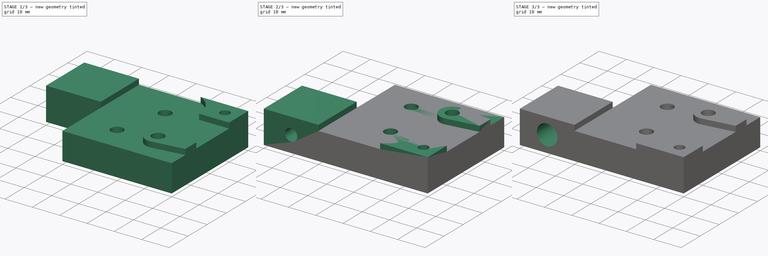
[diagram: build sequence overview — one tinted view per stage of 3, left to right]
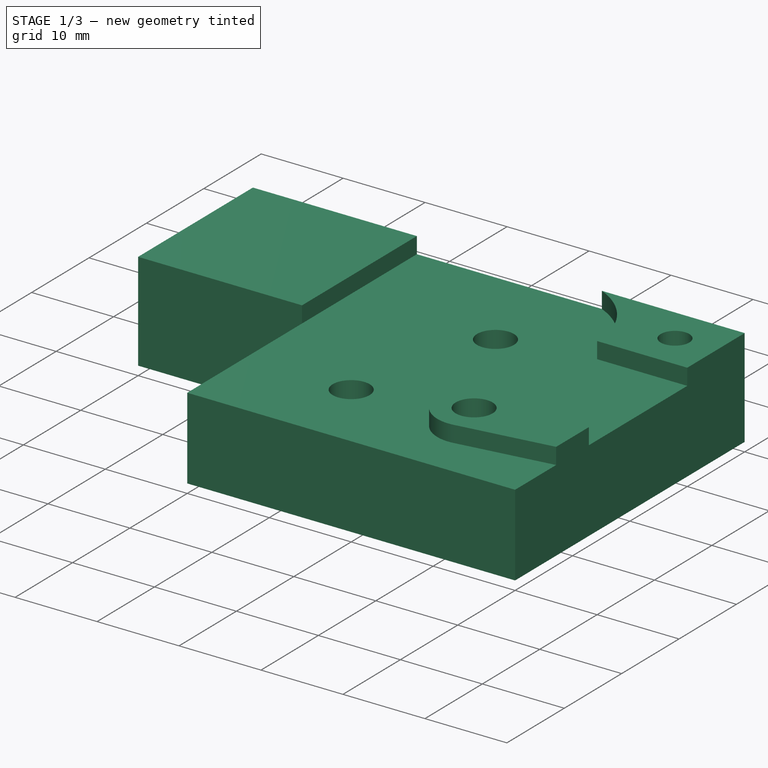
[diagram: stage 1 of 3 — iso view after this stage's code; geometry added in this stage tinted green]
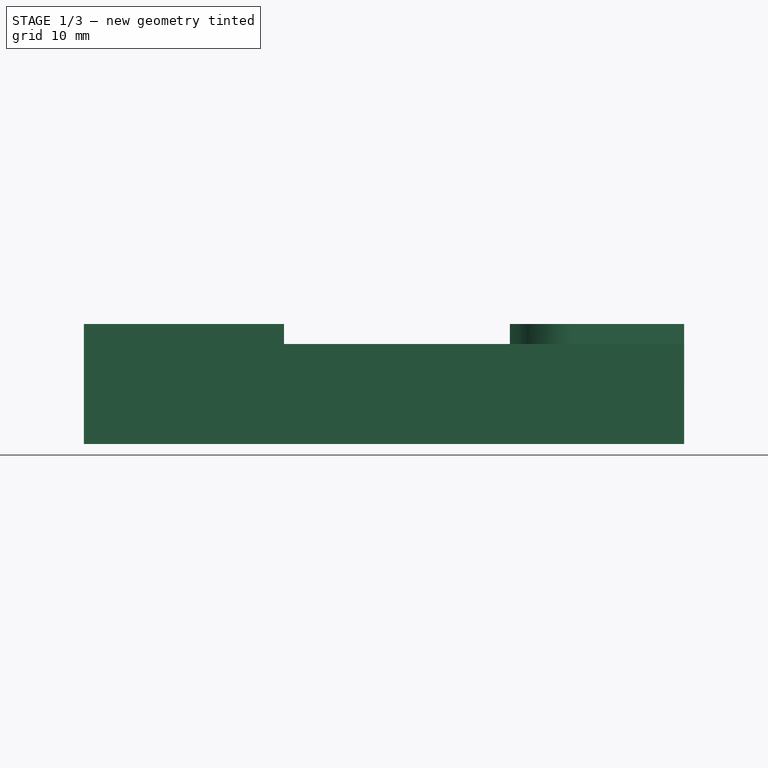
[diagram: stage 1 of 3 — front view after this stage's code; geometry added in this stage tinted green]
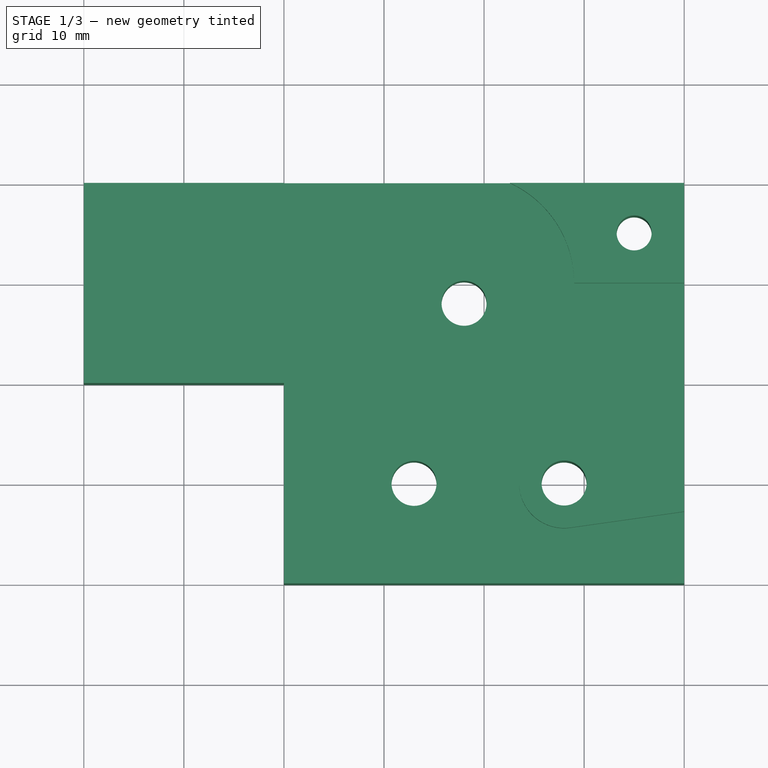
[diagram: stage 1 of 3 — top view after this stage's code; geometry added in this stage tinted green]
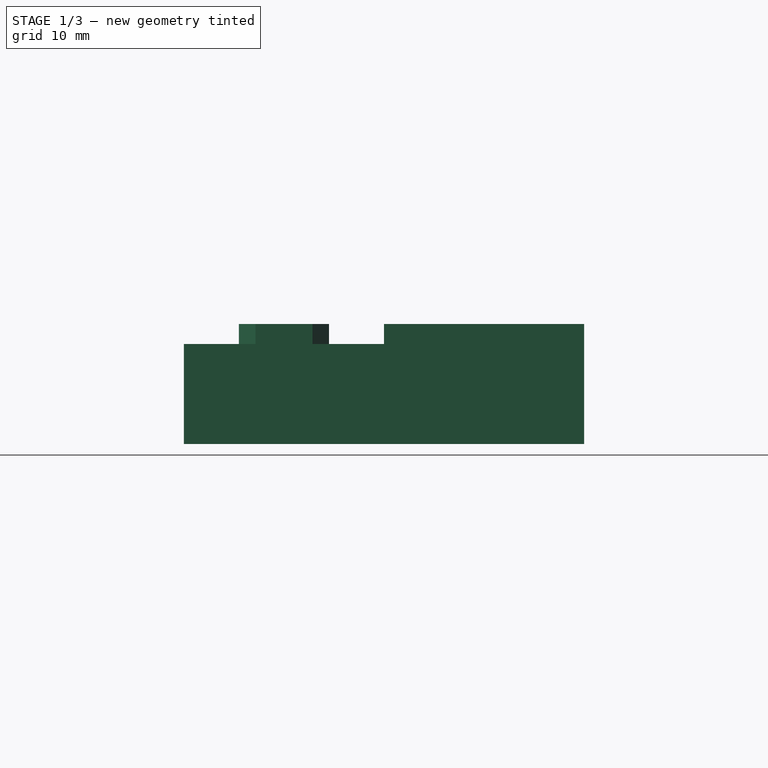
[diagram: stage 1 of 3 — right view after this stage's code; geometry added in this stage tinted green]
FCSTD DOCUMENT  (FreeCAD 0.16R4945 (Git))
Label: idler-block-top
License: All rights reserved
LicenseURL: http://en.wikipedia.org/wiki/All_rights_reserved
objects: Sketcher::SketchObject×5, PartDesign::Pocket×4, PartDesign::Pad×1, Part::Mirroring×1
note: 16 computed .brp shape members not serialized (recipe doc carries the construction recipe); baked Part::Feature solids carry a one-line shape summary decoded from their .brp

FEATURE [Sketcher::SketchObject] Sketch
  sketch-geometry (10):
    g0: LineSegment StartX=0 StartY=-20 StartZ=0 EndX=40 EndY=-20 EndZ=0
    g1: LineSegment StartX=40 StartY=-20 StartZ=0 EndX=40 EndY=20 EndZ=0
    g2: LineSegment StartX=40 StartY=20 StartZ=0 EndX=-20 EndY=20 EndZ=0
    g3: LineSegment StartX=-20 StartY=20 StartZ=0 EndX=-20 EndY=0 EndZ=0
    g4: LineSegment StartX=-20 StartY=0 StartZ=0 EndX=0 EndY=0 EndZ=0
    g5: LineSegment StartX=0 StartY=0 StartZ=0 EndX=0 EndY=-20 EndZ=0
    g6: Circle CenterX=18 CenterY=8 CenterZ=0 NormalX=0 NormalY=0 NormalZ=1 Radius=2.25
    g7: Circle CenterX=13 CenterY=-10 CenterZ=0 NormalX=0 NormalY=0 NormalZ=1 Radius=2.25
    g8: Circle CenterX=35 CenterY=15 CenterZ=0 NormalX=0 NormalY=0 NormalZ=1 Radius=1.75
    g9: Circle CenterX=28 CenterY=-10 CenterZ=0 NormalX=0 NormalY=0 NormalZ=1 Radius=2.25
  constraints (29):
    c: Coincident(g0,g1)
    c: Coincident(g1,g2)
    c: Coincident(g2,g3)
    c: Horizontal(g0)
    c: Horizontal(g2)
    c: Vertical(g1)
    c: Vertical(g3)
    c: Distance(g1) = 40
    c: Distance(g2) = 60
    c: Horizontal(g4)
    c: Coincident(g4,g5)
    c: Vertical(g5)
    c: Coincident(g3,g4)
    c: Coincident(g0,g5)
    c: DistanceX(g4) = 20
    c: DistanceY(g5) = -20
    c: DistanceY(g6,g7) = -18
    c: Equal(g6,g7)
    c: Radius(g7) = 2.25
    c: Coincident(g4,g-1)
    c: DistanceX(g8,g1) = 5
    c: DistanceX(g6) = 18
    c: DistanceX(g7,g6) = 5
    c: DistanceY(g1,g8) = -5
    c: DistanceY(g9,g7) = 0
    c: DistanceX(g-1,g9) = 28
    c: DistanceY(g7,g0) = -10
    c: Equal(g9,g7)
    c: Radius(g8) = 1.75
FEATURE [PartDesign::Pad] Pad
  Length = 12
  Length2 = 100
  Sketch = -> Sketch
  Type = 0
FEATURE [Sketcher::SketchObject] Sketch001
  Placement = pos=(0,0,12) rot=(0,0,1;0rad)
  Support = -> Pad [Face12]
  sketch-geometry (10):
    g0: LineSegment StartX=46 StartY=10 StartZ=0 EndX=29 EndY=10 EndZ=0
    g1: LineSegment StartX=18 StartY=21 StartZ=0 EndX=0 EndY=21 EndZ=0
    g2: ArcOfCircle CenterX=18 CenterY=10 CenterZ=0 NormalX=0 NormalY=0 NormalZ=1 Radius=11 StartAngle=0 EndAngle=1.5708
    g3: LineSegment StartX=46 StartY=-23 StartZ=0 EndX=46 EndY=-12 EndZ=0
    g4: ArcOfCircle CenterX=28 CenterY=-10 CenterZ=0 NormalX=0 NormalY=0 NormalZ=1 Radius=4.5 StartAngle=1.43036 EndAngle=4.85283
    g5: LineSegment StartX=28.6299 StartY=-5.5443 StartZ=0 EndX=46 EndY=-8 EndZ=0
    g6: LineSegment StartX=28.6299 StartY=-14.4557 StartZ=0 EndX=46 EndY=-12 EndZ=0
    g7: LineSegment StartX=46 StartY=-8 StartZ=0 EndX=46 EndY=10 EndZ=0
    g8: LineSegment StartX=0 StartY=-23 StartZ=0 EndX=46 EndY=-23 EndZ=0
    g9: LineSegment StartX=0 StartY=21 StartZ=0 EndX=0 EndY=-23 EndZ=0
  constraints (31):
    c: Horizontal(g0)
    c: Horizontal(g1)
    c: Coincident(g2,g0)
    c: Radius(g2) = 11
    c: Perpendicular(g0,g2)
    c: Coincident(g1,g2)
    c: Tangent(g1,g2)
    c: Vertical(g3)
    c: Coincident(g0,g7)
    c: DistanceX(g2) = 18
    c: DistanceY(g2) = 10
    c: Coincident(g5,g4)
    c: Coincident(g6,g4)
    c: Coincident(g3,g6)
    c: Coincident(g7,g5)
    c: Tangent(g3,g7)
    c: Tangent(g4,g5)
    c: Tangent(g4,g6)
    c: DistanceX(g4) = 28
    c: DistanceY(g5,g3) = -4
    c: Horizontal(g8)
    c: Coincident(g3,g8)
    c: DistanceY(g3) = 11
    c: Vertical(g9)
    c: Coincident(g8,g9)
    c: Distance(g8) = 46
    c: Coincident(g1,g9)
    c: DistanceX(g-1,g8) = 0
    c: DistanceY(g-1,g4) = -10
    c: Radius(g4) = 4.5
    c: DistanceY(g4,g5) = 2
FEATURE [PartDesign::Pocket] Pocket
  Length = 2
  Sketch = -> Sketch001
  Type = 0
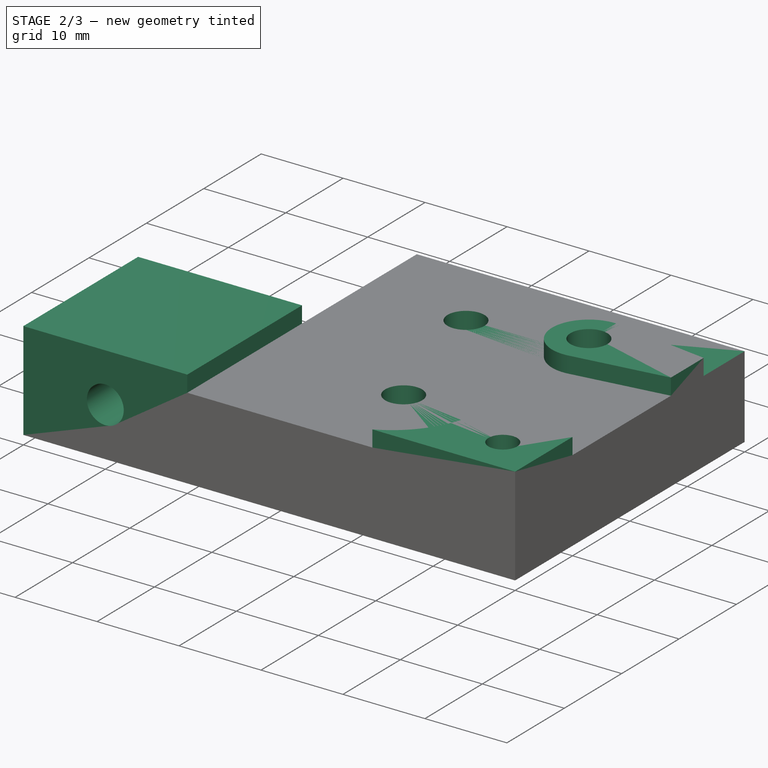
[diagram: stage 2 of 3 — iso view after this stage's code; geometry added in this stage tinted green]
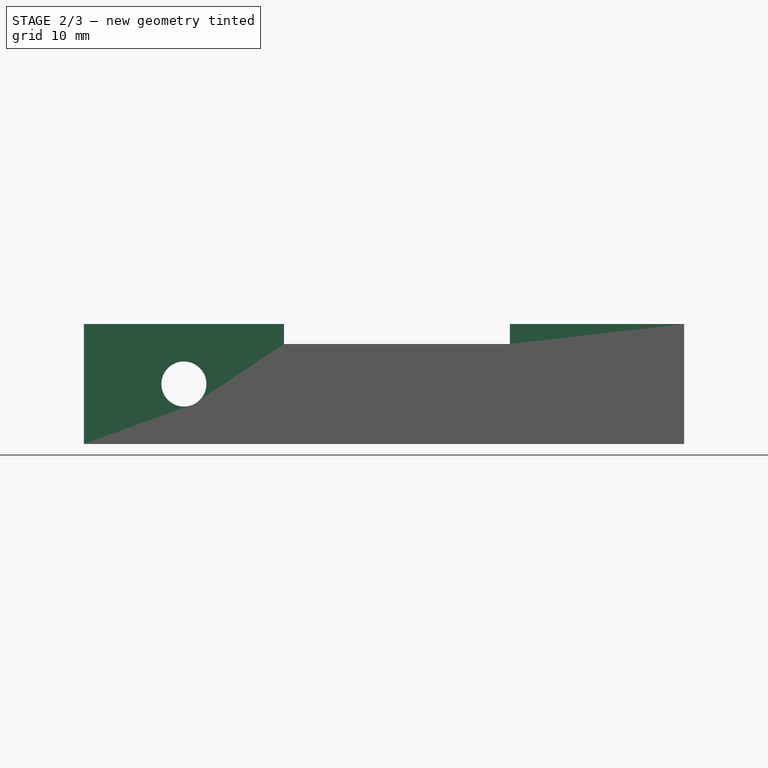
[diagram: stage 2 of 3 — front view after this stage's code; geometry added in this stage tinted green]
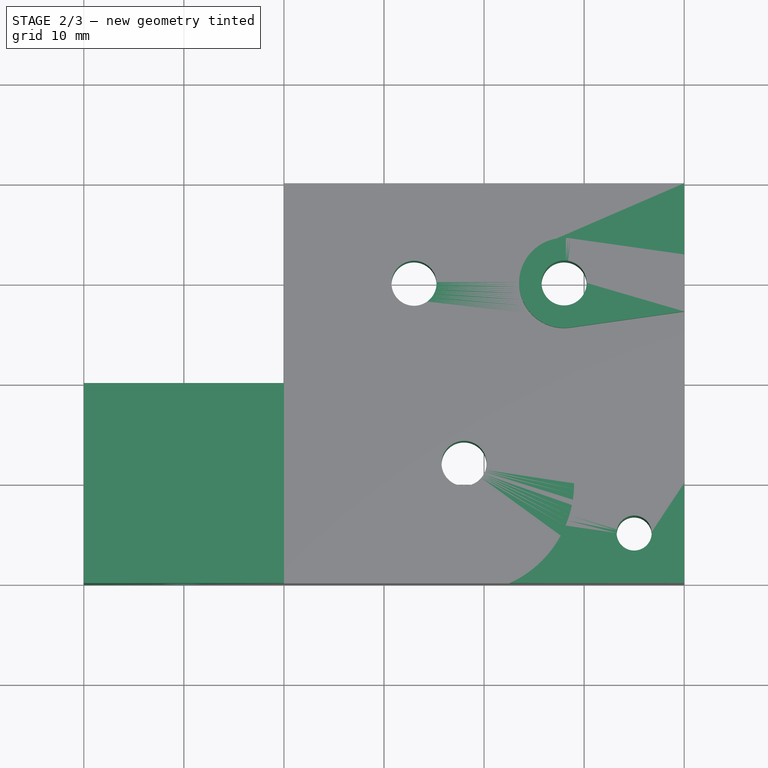
[diagram: stage 2 of 3 — top view after this stage's code; geometry added in this stage tinted green]
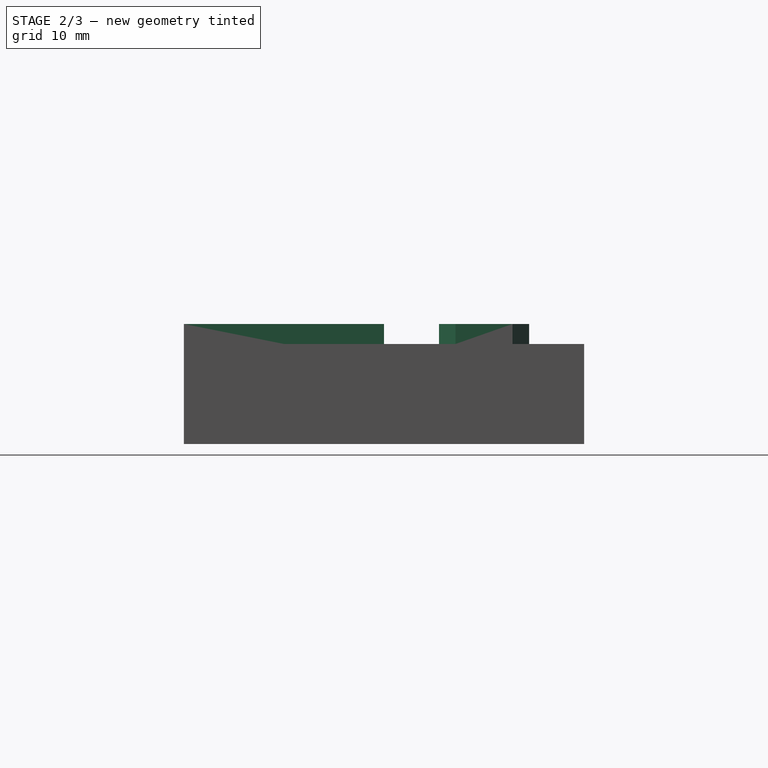
[diagram: stage 2 of 3 — right view after this stage's code; geometry added in this stage tinted green]
FEATURE [Sketcher::SketchObject] Sketch002
  Placement = pos=(0,0,0) rot=(1,0,0;1.5708rad)
  Support = -> Pocket [Face8]
  sketch-geometry (1):
    g0: Circle CenterX=-10 CenterY=6 CenterZ=0 NormalX=0 NormalY=0 NormalZ=1 Radius=2.25
  constraints (3):
    c: Radius(g0) = 2.25
    c: DistanceX(g0) = -10
    c: DistanceY(g0) = 6
FEATURE [PartDesign::Pocket] Pocket002
  Length = 5
  Sketch = -> Sketch002
  Type = 1
FEATURE [Part::Mirroring] Part__Mirroring  label="idler-block-top"
  Base = (10,-0.411961,0)
  Normal = (0,0,1)
  Placement = pos=(0,0,0) rot=(1,0,0;3.14159rad)
  Source = -> Pocket002
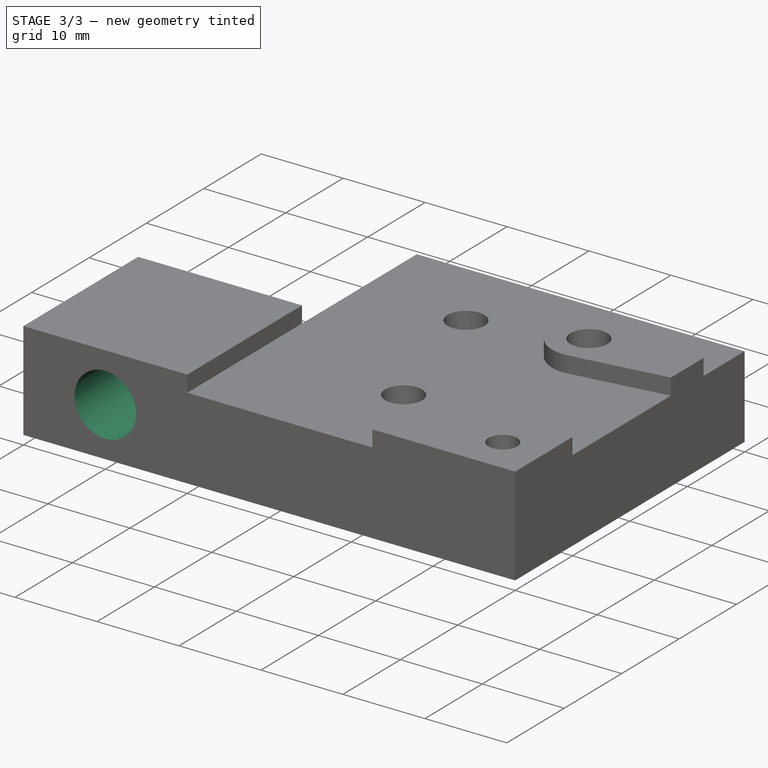
[diagram: stage 3 of 3 — iso view after this stage's code; geometry added in this stage tinted green]
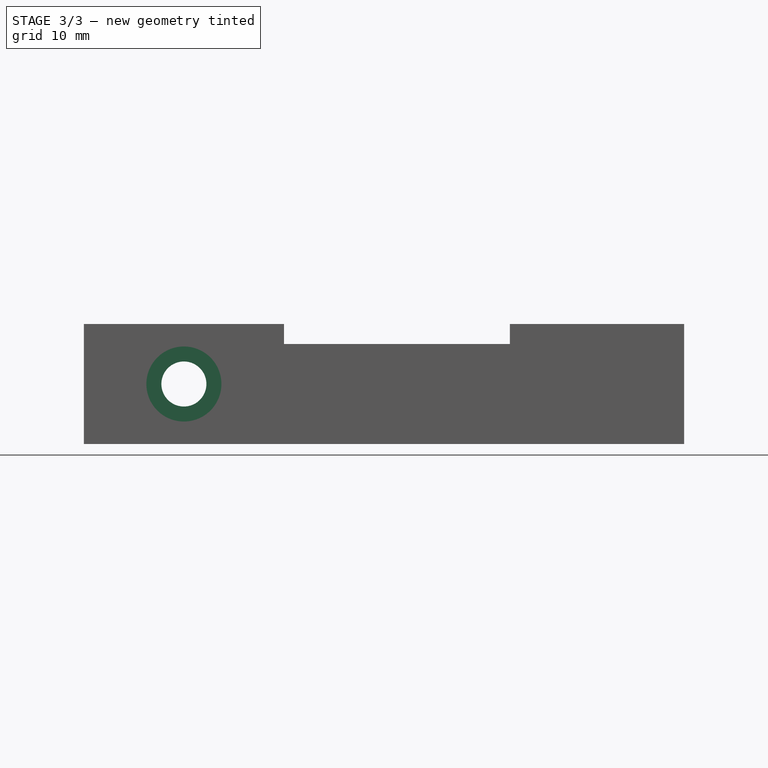
[diagram: stage 3 of 3 — front view after this stage's code; geometry added in this stage tinted green]
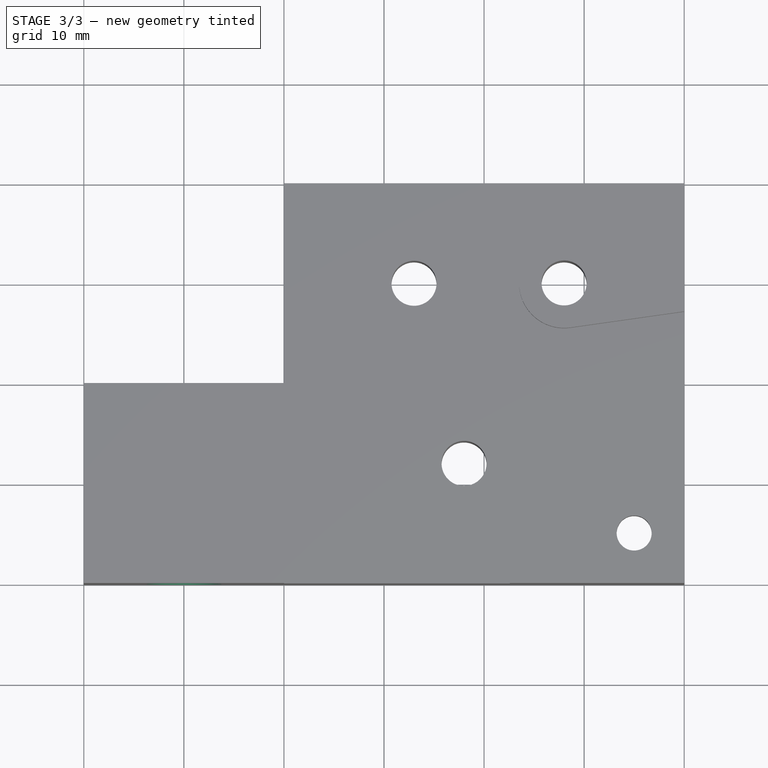
[diagram: stage 3 of 3 — top view after this stage's code; geometry added in this stage tinted green]
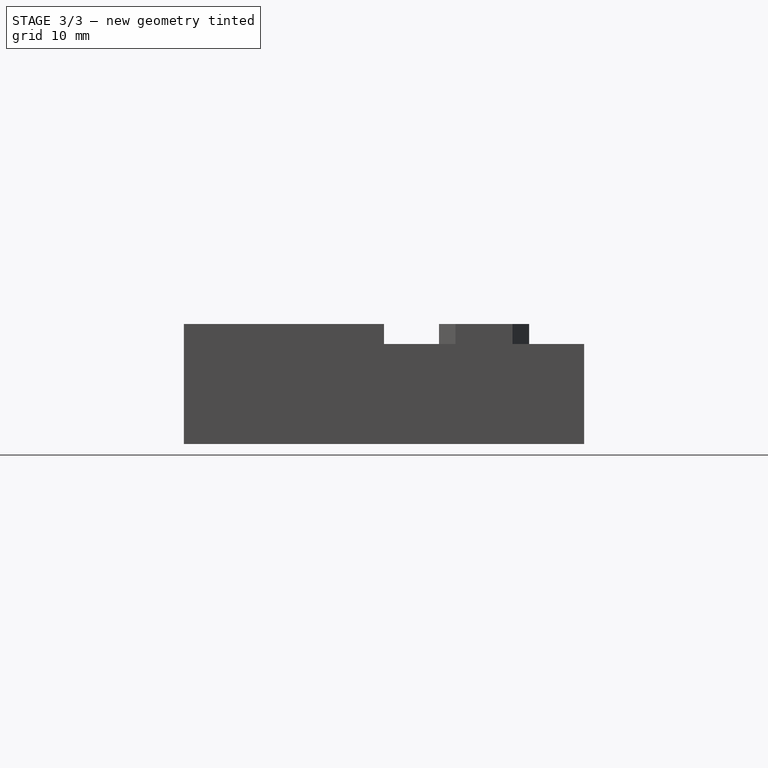
[diagram: stage 3 of 3 — right view after this stage's code; geometry added in this stage tinted green]
FEATURE [Sketcher::SketchObject] Sketch003
  ExternalGeometry = -> [Part__Mirroring]
  Placement = pos=(0,0,0) rot=(1,0,0;3.14159rad)
  Support = -> Part__Mirroring [Face2]
  sketch-geometry (1):
    g0: Circle CenterX=35 CenterY=15 CenterZ=0 NormalX=0 NormalY=0 NormalZ=1 Radius=3
  constraints (2):
    c: Coincident(g0,g-3)
    c: Radius(g0) = 3
FEATURE [PartDesign::Pocket] Pocket003
  Length = 8
  Placement = pos=(0,0,0) rot=(1,0,0;3.14159rad)
  Sketch = -> Sketch003
  Type = 0
FEATURE [Sketcher::SketchObject] Sketch004
  ExternalGeometry = -> [Pocket003]
  Placement = pos=(0,-20,0) rot=(0,0.707107,-0.707107;3.14159rad)
  Support = -> Pocket003 [Face7]
  sketch-geometry (1):
    g0: Circle CenterX=10 CenterY=-6 CenterZ=0 NormalX=0 NormalY=0 NormalZ=1 Radius=3.75
  constraints (2):
    c: Coincident(g0,g-3)
    c: Radius(g0) = 3.75
FEATURE [PartDesign::Pocket] Pocket004
  Length = 10
  Placement = pos=(0,0,0) rot=(1,0,0;3.14159rad)
  Sketch = -> Sketch004
  Type = 0
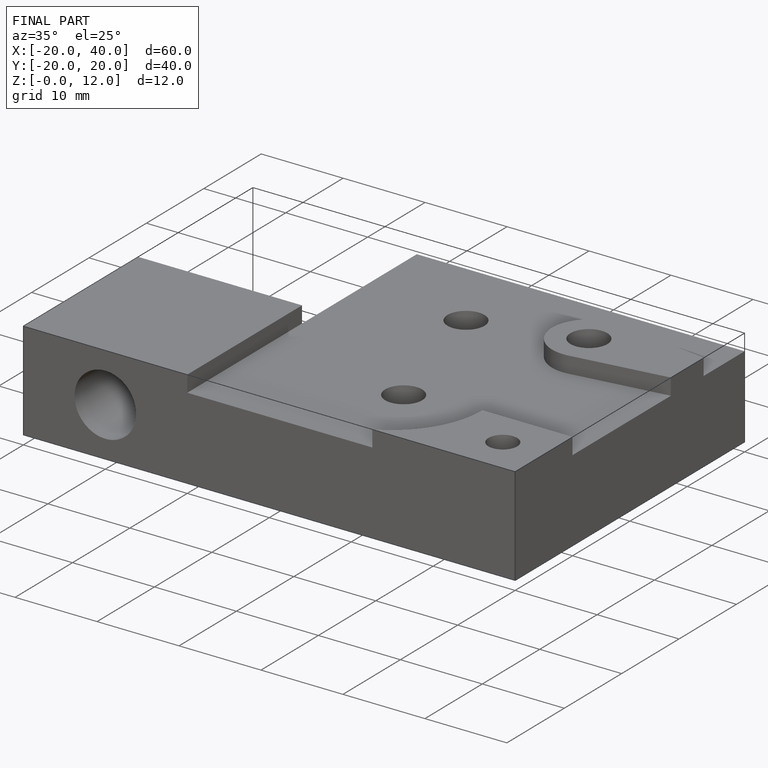
[diagram: finished part — iso view with bounding-box wireframe]
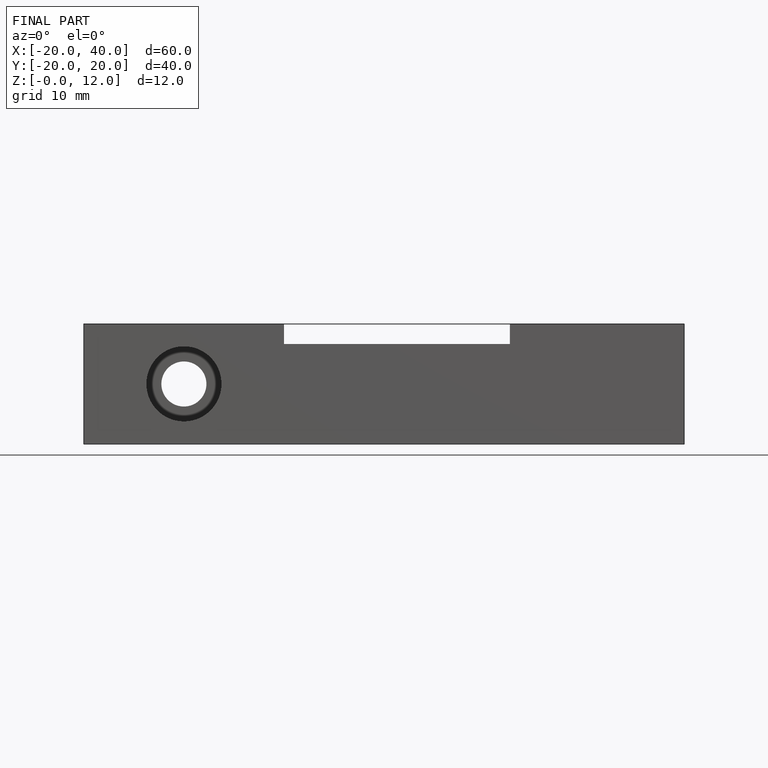
[diagram: finished part — front view with bounding-box wireframe]
